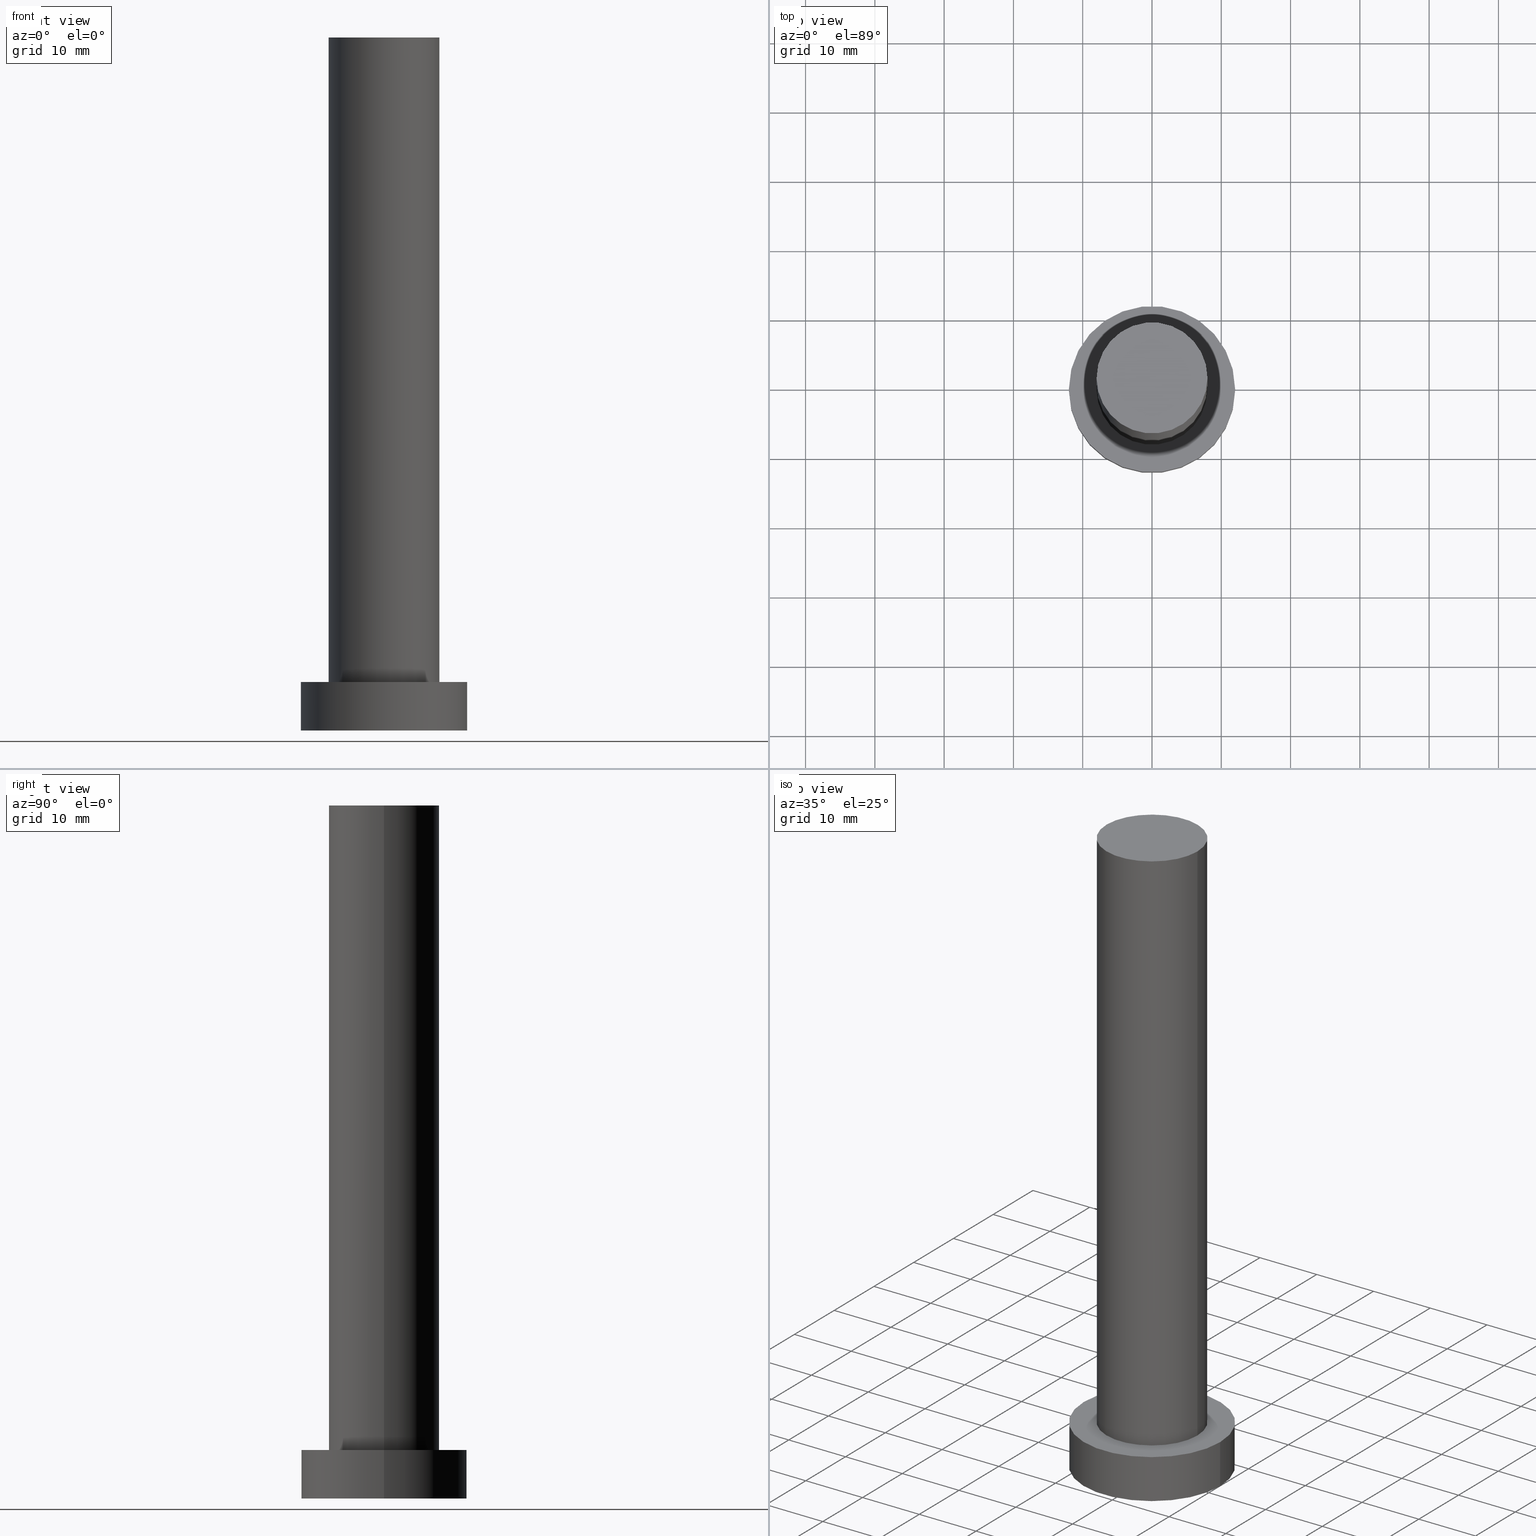
[diagram: canonical four-view strip — front | top / right | iso, engineering-drawing reading convention]
A machine part, canonical four-view strip (front | top / right | iso — engineering-drawing reading convention). The complete STEP part file that produces these views, byte-faithful:
ISO-10303-21;
HEADER;
FILE_DESCRIPTION (( 'STEP AP203' ),
    '1' );
FILE_NAME ('c171.STEP',
    '2023-02-13T09:44:55',
    ( '' ),
    ( '' ),
    'SwSTEP 2.0',
    'SolidWorks 2019',
    '' );
FILE_SCHEMA (( 'CONFIG_CONTROL_DESIGN' ));
ENDSEC;

DATA;
#1 = PERSON_AND_ORGANIZATION ( #241, #145 ) ;
#2 = CARTESIAN_POINT ( 'NONE',  ( 12.00000000000000178, 1.469576158976824144E-15, 7.000000000000000000 ) ) ;
#3 = AXIS2_PLACEMENT_3D ( 'NONE', #124, #224, #221 ) ;
#4 = APPROVAL_PERSON_ORGANIZATION ( #1, #196, #177 ) ;
#5 = CARTESIAN_POINT ( 'NONE',  ( 0.000000000000000000, 0.000000000000000000, 7.000000000000000000 ) ) ;
#6 = AXIS2_PLACEMENT_3D ( 'NONE', #97, #24, #198 ) ;
#7 = ORIENTED_EDGE ( 'NONE', *, *, #81, .F. ) ;
#8 = CARTESIAN_POINT ( 'NONE',  ( 0.000000000000000000, 0.000000000000000000, 0.000000000000000000 ) ) ;
#9 = LINE ( 'NONE', #162, #233 ) ;
#10 = ORIENTED_EDGE ( 'NONE', *, *, #245, .T. ) ;
#11 = APPLICATION_CONTEXT ( 'configuration controlled 3d designs of mechanical parts and assemblies' ) ;
#12 = DIRECTION ( 'NONE',  ( -0.000000000000000000, -0.000000000000000000, -1.000000000000000000 ) ) ;
#13 = DIRECTION ( 'NONE',  ( 1.000000000000000000, 0.000000000000000000, 0.000000000000000000 ) ) ;
#14 = ADVANCED_FACE ( 'NONE', ( #197 ), #39, .T. ) ;
#15 = CARTESIAN_POINT ( 'NONE',  ( 0.000000000000000000, 0.000000000000000000, 7.000000000000000000 ) ) ;
#16 = DATE_AND_TIME ( #94, #165 ) ;
#17 = DATE_AND_TIME ( #193, #133 ) ;
#18 = PERSON_AND_ORGANIZATION ( #241, #145 ) ;
#19 = AXIS2_PLACEMENT_3D ( 'NONE', #122, #160, #139 ) ;
#20 = DIRECTION ( 'NONE',  ( 1.000000000000000000, 0.000000000000000000, 0.000000000000000000 ) ) ;
#21 = CLOSED_SHELL ( 'NONE', ( #250, #75, #14, #42, #227, #113, #182 ) ) ;
#22 = CC_DESIGN_SECURITY_CLASSIFICATION ( #141, ( #79 ) ) ;
#23 = EDGE_CURVE ( 'NONE', #152, #207, #199, .T. ) ;
#24 = DIRECTION ( 'NONE',  ( -0.000000000000000000, -0.000000000000000000, -1.000000000000000000 ) ) ;
#25 = DIRECTION ( 'NONE',  ( -0.000000000000000000, -0.000000000000000000, -1.000000000000000000 ) ) ;
#26 = ORIENTED_EDGE ( 'NONE', *, *, #194, .F. ) ;
#27 = ORIENTED_EDGE ( 'NONE', *, *, #59, .F. ) ;
#28 = PERSON_AND_ORGANIZATION_ROLE ( 'creator' ) ;
#29 = EDGE_LOOP ( 'NONE', ( #230, #27, #189, #206 ) ) ;
#30 = ORIENTED_EDGE ( 'NONE', *, *, #116, .F. ) ;
#31 = EDGE_CURVE ( 'NONE', #152, #155, #96, .T. ) ;
#32 = DIRECTION ( 'NONE',  ( 0.000000000000000000, 0.000000000000000000, 1.000000000000000000 ) ) ;
#33 =( LENGTH_UNIT ( ) NAMED_UNIT ( * ) SI_UNIT ( .MILLI., .METRE. ) );
#34 = CYLINDRICAL_SURFACE ( 'NONE', #215, 12.00000000000000178 ) ;
#35 = MANIFOLD_SOLID_BREP ( 'P�idat vysunut�m3', #21 ) ;
#36 = APPROVAL_STATUS ( 'not_yet_approved' ) ;
#37 = LOCAL_TIME ( 10, 44, 55.00000000000000000, #130 ) ;
#38 = PRODUCT_DEFINITION ( 'NEZN�M�', '', #79, #105 ) ;
#39 = CYLINDRICAL_SURFACE ( 'NONE', #115, 12.00000000000000178 ) ;
#40 = LOCAL_TIME ( 10, 44, 55.00000000000000000, #112 ) ;
#41 = DIRECTION ( 'NONE',  ( 1.000000000000000000, 0.000000000000000000, 0.000000000000000000 ) ) ;
#42 = ADVANCED_FACE ( 'NONE', ( #176, #169 ), #192, .T. ) ;
#43 = DIRECTION ( 'NONE',  ( 1.000000000000000000, 0.000000000000000000, -0.000000000000000000 ) ) ;
#44 = FACE_OUTER_BOUND ( 'NONE', #88, .T. ) ;
#45 = DIRECTION ( 'NONE',  ( 1.000000000000000000, 0.000000000000000000, 0.000000000000000000 ) ) ;
#46 = ORIENTED_EDGE ( 'NONE', *, *, #148, .T. ) ;
#47 = DIRECTION ( 'NONE',  ( 0.000000000000000000, 0.000000000000000000, 1.000000000000000000 ) ) ;
#48 = VECTOR ( 'NONE', #60, 1000.000000000000000 ) ;
#49 = VERTEX_POINT ( 'NONE', #150 ) ;
#50 = DATE_TIME_ROLE ( 'creation_date' ) ;
#51 = VERTEX_POINT ( 'NONE', #238 ) ;
#52 = PERSON_AND_ORGANIZATION_ROLE ( 'design_owner' ) ;
#53 = EDGE_LOOP ( 'NONE', ( #84, #166 ) ) ;
#54 = PERSON_AND_ORGANIZATION ( #241, #145 ) ;
#55 = ORIENTED_EDGE ( 'NONE', *, *, #99, .F. ) ;
#56 = AXIS2_PLACEMENT_3D ( 'NONE', #217, #138, #219 ) ;
#57 = EDGE_LOOP ( 'NONE', ( #101, #118, #46, #161 ) ) ;
#58 = CARTESIAN_POINT ( 'NONE',  ( 0.000000000000000000, 0.000000000000000000, 7.000000000000000000 ) ) ;
#59 = EDGE_CURVE ( 'NONE', #207, #152, #203, .T. ) ;
#60 = DIRECTION ( 'NONE',  ( -0.000000000000000000, -0.000000000000000000, -1.000000000000000000 ) ) ;
#61 = DIRECTION ( 'NONE',  ( 1.000000000000000000, 0.000000000000000000, 0.000000000000000000 ) ) ;
#62 = AXIS2_PLACEMENT_3D ( 'NONE', #58, #235, #13 ) ;
#63 = AXIS2_PLACEMENT_3D ( 'NONE', #212, #70, #106 ) ;
#64 = ORIENTED_EDGE ( 'NONE', *, *, #116, .T. ) ;
#65 = CARTESIAN_POINT ( 'NONE',  ( 12.00000000000000178, 1.469576158976824144E-15, 0.000000000000000000 ) ) ;
#66 = APPLICATION_PROTOCOL_DEFINITION ( 'international standard', 'config_control_design', 1994, #11 ) ;
#67 = ORIENTED_EDGE ( 'NONE', *, *, #180, .T. ) ;
#68 = DIRECTION ( 'NONE',  ( -0.000000000000000000, -0.000000000000000000, -1.000000000000000000 ) ) ;
#69 = APPROVAL_STATUS ( 'not_yet_approved' ) ;
#70 = DIRECTION ( 'NONE',  ( 0.000000000000000000, 0.000000000000000000, 1.000000000000000000 ) ) ;
#71 = APPROVAL ( #69, 'NEUR�EN�' ) ;
#72 = APPROVAL_DATE_TIME ( #16, #196 ) ;
#73 = DIRECTION ( 'NONE',  ( -1.000000000000000000, 0.000000000000000000, 0.000000000000000000 ) ) ;
#74 = SHAPE_DEFINITION_REPRESENTATION ( #210, #120 ) ;
#75 = ADVANCED_FACE ( 'NONE', ( #175 ), #34, .T. ) ;
#76 = PERSON_AND_ORGANIZATION_ROLE ( 'creator' ) ;
#77 = CC_DESIGN_PERSON_AND_ORGANIZATION_ASSIGNMENT ( #134, #254, ( #141 ) ) ;
#78 = CARTESIAN_POINT ( 'NONE',  ( 0.000000000000000000, 0.000000000000000000, 0.000000000000000000 ) ) ;
#79 = PRODUCT_DEFINITION_FORMATION_WITH_SPECIFIED_SOURCE ( 'LIBOVOLN�', '', #229, .NOT_KNOWN. ) ;
#80 = CARTESIAN_POINT ( 'NONE',  ( -12.00000000000000178, 0.000000000000000000, 7.000000000000000000 ) ) ;
#81 = EDGE_CURVE ( 'NONE', #51, #244, #153, .T. ) ;
#82 = PLANE ( 'NONE',  #159 ) ;
#83 = CARTESIAN_POINT ( 'NONE',  ( -8.000000000000000000, 0.000000000000000000, 7.000000000000000000 ) ) ;
#84 = ORIENTED_EDGE ( 'NONE', *, *, #59, .T. ) ;
#85 = EDGE_CURVE ( 'NONE', #244, #51, #208, .T. ) ;
#86 = CARTESIAN_POINT ( 'NONE',  ( 0.000000000000000000, 0.000000000000000000, 100.0000000000000000 ) ) ;
#87 = AXIS2_PLACEMENT_3D ( 'NONE', #239, #102, #41 ) ;
#88 = EDGE_LOOP ( 'NONE', ( #67, #146 ) ) ;
#89 = CC_DESIGN_APPROVAL ( #196, ( #141 ) ) ;
#90 = PRODUCT_RELATED_PRODUCT_CATEGORY ( 'detail', '', ( #229 ) ) ;
#91 = CYLINDRICAL_SURFACE ( 'NONE', #172, 8.000000000000000000 ) ;
#92 = APPROVAL_STATUS ( 'not_yet_approved' ) ;
#93 = VECTOR ( 'NONE', #25, 1000.000000000000000 ) ;
#94 = CALENDAR_DATE ( 2023, 13, 2 ) ;
#95 = AXIS2_PLACEMENT_3D ( 'NONE', #5, #47, #45 ) ;
#96 = LINE ( 'NONE', #179, #110 ) ;
#97 = CARTESIAN_POINT ( 'NONE',  ( 0.000000000000000000, 0.000000000000000000, 100.0000000000000000 ) ) ;
#98 = AXIS2_PLACEMENT_3D ( 'NONE', #119, #156, #61 ) ;
#99 = EDGE_CURVE ( 'NONE', #207, #144, #243, .T. ) ;
#100 = FACE_OUTER_BOUND ( 'NONE', #57, .T. ) ;
#101 = ORIENTED_EDGE ( 'NONE', *, *, #245, .F. ) ;
#102 = DIRECTION ( 'NONE',  ( 0.000000000000000000, 0.000000000000000000, 1.000000000000000000 ) ) ;
#103 = ORIENTED_EDGE ( 'NONE', *, *, #81, .T. ) ;
#104 = PERSON_AND_ORGANIZATION ( #241, #145 ) ;
#105 = DESIGN_CONTEXT ( 'detailed design', #11, 'design' ) ;
#106 = DIRECTION ( 'NONE',  ( 1.000000000000000000, 0.000000000000000000, 0.000000000000000000 ) ) ;
#107 = DIRECTION ( 'NONE',  ( -1.000000000000000000, 0.000000000000000000, 0.000000000000000000 ) ) ;
#108 = APPLICATION_PROTOCOL_DEFINITION ( 'international standard', 'config_control_design', 1994, #171 ) ;
#109 = SECURITY_CLASSIFICATION_LEVEL ( 'unclassified' ) ;
#110 = VECTOR ( 'NONE', #12, 1000.000000000000000 ) ;
#111 = APPROVAL_PERSON_ORGANIZATION ( #104, #200, #170 ) ;
#112 = COORDINATED_UNIVERSAL_TIME_OFFSET ( 1, 0, .AHEAD. ) ;
#113 = ADVANCED_FACE ( 'NONE', ( #100 ), #127, .T. ) ;
#114 = CALENDAR_DATE ( 2023, 13, 2 ) ;
#115 = AXIS2_PLACEMENT_3D ( 'NONE', #117, #209, #237 ) ;
#116 = EDGE_CURVE ( 'NONE', #155, #144, #191, .T. ) ;
#117 = CARTESIAN_POINT ( 'NONE',  ( 0.000000000000000000, 0.000000000000000000, 7.000000000000000000 ) ) ;
#118 = ORIENTED_EDGE ( 'NONE', *, *, #180, .F. ) ;
#119 = CARTESIAN_POINT ( 'NONE',  ( 0.000000000000000000, 0.000000000000000000, 7.000000000000000000 ) ) ;
#120 = ADVANCED_BREP_SHAPE_REPRESENTATION ( 'c171', ( #35, #63 ), #137 ) ;
#121 = CIRCLE ( 'NONE', #19, 8.000000000000000000 ) ;
#122 = CARTESIAN_POINT ( 'NONE',  ( 0.000000000000000000, 0.000000000000000000, 100.0000000000000000 ) ) ;
#123 = CARTESIAN_POINT ( 'NONE',  ( 0.000000000000000000, 0.000000000000000000, 100.0000000000000000 ) ) ;
#124 = CARTESIAN_POINT ( 'NONE',  ( 0.000000000000000000, 0.000000000000000000, 0.000000000000000000 ) ) ;
#125 = ORIENTED_EDGE ( 'NONE', *, *, #31, .T. ) ;
#126 = CC_DESIGN_PERSON_AND_ORGANIZATION_ASSIGNMENT ( #147, #52, ( #229 ) ) ;
#127 = CYLINDRICAL_SURFACE ( 'NONE', #6, 8.000000000000000000 ) ;
#128 = APPROVAL_PERSON_ORGANIZATION ( #186, #71, #231 ) ;
#129 = EDGE_LOOP ( 'NONE', ( #248, #125, #64, #55 ) ) ;
#130 = COORDINATED_UNIVERSAL_TIME_OFFSET ( 1, 0, .AHEAD. ) ;
#131 = AXIS2_PLACEMENT_3D ( 'NONE', #123, #143, #43 ) ;
#132 = ORIENTED_EDGE ( 'NONE', *, *, #148, .F. ) ;
#133 = LOCAL_TIME ( 10, 44, 55.00000000000000000, #253 ) ;
#134 = PERSON_AND_ORGANIZATION ( #241, #145 ) ;
#135 = DATE_AND_TIME ( #114, #40 ) ;
#136 = CIRCLE ( 'NONE', #173, 12.00000000000000178 ) ;
#137 =( GEOMETRIC_REPRESENTATION_CONTEXT ( 3 ) GLOBAL_UNCERTAINTY_ASSIGNED_CONTEXT ( ( #246 ) ) GLOBAL_UNIT_ASSIGNED_CONTEXT ( ( #33, #168, #187 ) ) REPRESENTATION_CONTEXT ( 'NONE', 'WORKASPACE' ) );
#138 = DIRECTION ( 'NONE',  ( 0.000000000000000000, 0.000000000000000000, 1.000000000000000000 ) ) ;
#139 = DIRECTION ( 'NONE',  ( 1.000000000000000000, 0.000000000000000000, 0.000000000000000000 ) ) ;
#140 = CARTESIAN_POINT ( 'NONE',  ( -12.00000000000000178, 0.000000000000000000, 0.000000000000000000 ) ) ;
#141 = SECURITY_CLASSIFICATION ( '', '', #109 ) ;
#142 = ORIENTED_EDGE ( 'NONE', *, *, #85, .F. ) ;
#143 = DIRECTION ( 'NONE',  ( 0.000000000000000000, 0.000000000000000000, 1.000000000000000000 ) ) ;
#144 = VERTEX_POINT ( 'NONE', #140 ) ;
#145 = ORGANIZATION ( 'NEUR�EN�', 'NEUR�EN�', '' ) ;
#146 = ORIENTED_EDGE ( 'NONE', *, *, #194, .T. ) ;
#147 = PERSON_AND_ORGANIZATION ( #241, #145 ) ;
#148 = EDGE_CURVE ( 'NONE', #225, #244, #157, .T. ) ;
#149 = DIRECTION ( 'NONE',  ( 0.000000000000000000, 0.000000000000000000, 1.000000000000000000 ) ) ;
#150 = CARTESIAN_POINT ( 'NONE',  ( 8.000000000000000000, 9.797174393178823685E-16, 100.0000000000000000 ) ) ;
#151 = APPROVAL_DATE_TIME ( #251, #200 ) ;
#152 = VERTEX_POINT ( 'NONE', #2 ) ;
#153 = CIRCLE ( 'NONE', #98, 8.000000000000000000 ) ;
#154 = COORDINATED_UNIVERSAL_TIME_OFFSET ( 1, 0, .AHEAD. ) ;
#155 = VERTEX_POINT ( 'NONE', #65 ) ;
#156 = DIRECTION ( 'NONE',  ( 0.000000000000000000, 0.000000000000000000, 1.000000000000000000 ) ) ;
#157 = LINE ( 'NONE', #240, #93 ) ;
#158 = DIRECTION ( 'NONE',  ( 1.000000000000000000, 0.000000000000000000, -0.000000000000000000 ) ) ;
#159 = AXIS2_PLACEMENT_3D ( 'NONE', #78, #181, #158 ) ;
#160 = DIRECTION ( 'NONE',  ( 0.000000000000000000, 0.000000000000000000, 1.000000000000000000 ) ) ;
#161 = ORIENTED_EDGE ( 'NONE', *, *, #85, .T. ) ;
#162 = CARTESIAN_POINT ( 'NONE',  ( 8.000000000000000000, 9.797174393178823685E-16, 100.0000000000000000 ) ) ;
#163 = DIRECTION ( 'NONE',  ( -0.000000000000000000, -0.000000000000000000, -1.000000000000000000 ) ) ;
#164 = CIRCLE ( 'NONE', #87, 8.000000000000000000 ) ;
#165 = LOCAL_TIME ( 10, 44, 55.00000000000000000, #154 ) ;
#166 = ORIENTED_EDGE ( 'NONE', *, *, #23, .T. ) ;
#167 = CALENDAR_DATE ( 2023, 13, 2 ) ;
#168 =( NAMED_UNIT ( * ) PLANE_ANGLE_UNIT ( ) SI_UNIT ( $, .RADIAN. ) );
#169 = FACE_OUTER_BOUND ( 'NONE', #53, .T. ) ;
#170 = APPROVAL_ROLE ( '' ) ;
#171 = APPLICATION_CONTEXT ( 'configuration controlled 3d designs of mechanical parts and assemblies' ) ;
#172 = AXIS2_PLACEMENT_3D ( 'NONE', #86, #163, #107 ) ;
#173 = AXIS2_PLACEMENT_3D ( 'NONE', #8, #149, #234 ) ;
#174 = CC_DESIGN_PERSON_AND_ORGANIZATION_ASSIGNMENT ( #18, #214, ( #79 ) ) ;
#175 = FACE_OUTER_BOUND ( 'NONE', #129, .T. ) ;
#176 = FACE_BOUND ( 'NONE', #190, .T. ) ;
#177 = APPROVAL_ROLE ( '' ) ;
#178 = DATE_TIME_ROLE ( 'classification_date' ) ;
#179 = CARTESIAN_POINT ( 'NONE',  ( 12.00000000000000178, 1.469576158976824144E-15, 7.000000000000000000 ) ) ;
#180 = EDGE_CURVE ( 'NONE', #225, #49, #164, .T. ) ;
#181 = DIRECTION ( 'NONE',  ( 0.000000000000000000, 0.000000000000000000, 1.000000000000000000 ) ) ;
#182 = ADVANCED_FACE ( 'NONE', ( #44 ), #222, .T. ) ;
#183 = FACE_OUTER_BOUND ( 'NONE', #202, .T. ) ;
#184 = CARTESIAN_POINT ( 'NONE',  ( -12.00000000000000178, 0.000000000000000000, 7.000000000000000000 ) ) ;
#185 = ORIENTED_EDGE ( 'NONE', *, *, #255, .F. ) ;
#186 = PERSON_AND_ORGANIZATION ( #241, #145 ) ;
#187 =( NAMED_UNIT ( * ) SI_UNIT ( $, .STERADIAN. ) SOLID_ANGLE_UNIT ( ) );
#188 = CC_DESIGN_APPROVAL ( #200, ( #38 ) ) ;
#189 = ORIENTED_EDGE ( 'NONE', *, *, #99, .T. ) ;
#190 = EDGE_LOOP ( 'NONE', ( #142, #7 ) ) ;
#191 = CIRCLE ( 'NONE', #3, 12.00000000000000178 ) ;
#192 = PLANE ( 'NONE',  #56 ) ;
#193 = CALENDAR_DATE ( 2023, 13, 2 ) ;
#194 = EDGE_CURVE ( 'NONE', #49, #225, #121, .T. ) ;
#195 = PERSON_AND_ORGANIZATION ( #241, #145 ) ;
#196 = APPROVAL ( #36, 'NEUR�EN�' ) ;
#197 = FACE_OUTER_BOUND ( 'NONE', #29, .T. ) ;
#198 = DIRECTION ( 'NONE',  ( -1.000000000000000000, 0.000000000000000000, 0.000000000000000000 ) ) ;
#199 = CIRCLE ( 'NONE', #242, 12.00000000000000178 ) ;
#200 = APPROVAL ( #92, 'NEUR�EN�' ) ;
#201 = CARTESIAN_POINT ( 'NONE',  ( -8.000000000000000000, 0.000000000000000000, 100.0000000000000000 ) ) ;
#202 = EDGE_LOOP ( 'NONE', ( #185, #30 ) ) ;
#203 = CIRCLE ( 'NONE', #62, 12.00000000000000178 ) ;
#204 = EDGE_LOOP ( 'NONE', ( #26, #10, #103, #132 ) ) ;
#205 = FACE_OUTER_BOUND ( 'NONE', #204, .T. ) ;
#206 = ORIENTED_EDGE ( 'NONE', *, *, #255, .T. ) ;
#207 = VERTEX_POINT ( 'NONE', #184 ) ;
#208 = CIRCLE ( 'NONE', #95, 8.000000000000000000 ) ;
#209 = DIRECTION ( 'NONE',  ( -0.000000000000000000, -0.000000000000000000, -1.000000000000000000 ) ) ;
#210 = PRODUCT_DEFINITION_SHAPE ( 'NONE', 'NONE',  #38 ) ;
#211 = CC_DESIGN_DATE_AND_TIME_ASSIGNMENT ( #228, #50, ( #38 ) ) ;
#212 = CARTESIAN_POINT ( 'NONE',  ( 0.000000000000000000, 0.000000000000000000, 0.000000000000000000 ) ) ;
#213 = CARTESIAN_POINT ( 'NONE',  ( 0.000000000000000000, 0.000000000000000000, 7.000000000000000000 ) ) ;
#214 = PERSON_AND_ORGANIZATION_ROLE ( 'design_supplier' ) ;
#215 = AXIS2_PLACEMENT_3D ( 'NONE', #15, #252, #73 ) ;
#216 = APPROVAL_DATE_TIME ( #135, #71 ) ;
#217 = CARTESIAN_POINT ( 'NONE',  ( 0.000000000000000000, 0.000000000000000000, 7.000000000000000000 ) ) ;
#218 = CC_DESIGN_PERSON_AND_ORGANIZATION_ASSIGNMENT ( #195, #76, ( #79 ) ) ;
#219 = DIRECTION ( 'NONE',  ( 1.000000000000000000, 0.000000000000000000, -0.000000000000000000 ) ) ;
#220 = CC_DESIGN_DATE_AND_TIME_ASSIGNMENT ( #17, #178, ( #141 ) ) ;
#221 = DIRECTION ( 'NONE',  ( 1.000000000000000000, 0.000000000000000000, 0.000000000000000000 ) ) ;
#222 = PLANE ( 'NONE',  #131 ) ;
#223 = LOCAL_TIME ( 10, 44, 55.00000000000000000, #236 ) ;
#224 = DIRECTION ( 'NONE',  ( 0.000000000000000000, 0.000000000000000000, 1.000000000000000000 ) ) ;
#225 = VERTEX_POINT ( 'NONE', #201 ) ;
#226 = CC_DESIGN_APPROVAL ( #71, ( #79 ) ) ;
#227 = ADVANCED_FACE ( 'NONE', ( #183 ), #82, .F. ) ;
#228 = DATE_AND_TIME ( #249, #223 ) ;
#229 = PRODUCT ( 'c171', 'c171', '', ( #247 ) ) ;
#230 = ORIENTED_EDGE ( 'NONE', *, *, #31, .F. ) ;
#231 = APPROVAL_ROLE ( '' ) ;
#232 = CC_DESIGN_PERSON_AND_ORGANIZATION_ASSIGNMENT ( #54, #28, ( #38 ) ) ;
#233 = VECTOR ( 'NONE', #68, 1000.000000000000000 ) ;
#234 = DIRECTION ( 'NONE',  ( 1.000000000000000000, 0.000000000000000000, 0.000000000000000000 ) ) ;
#235 = DIRECTION ( 'NONE',  ( 0.000000000000000000, 0.000000000000000000, 1.000000000000000000 ) ) ;
#236 = COORDINATED_UNIVERSAL_TIME_OFFSET ( 1, 0, .AHEAD. ) ;
#237 = DIRECTION ( 'NONE',  ( -1.000000000000000000, 0.000000000000000000, 0.000000000000000000 ) ) ;
#238 = CARTESIAN_POINT ( 'NONE',  ( 8.000000000000000000, 9.797174393178823685E-16, 7.000000000000000000 ) ) ;
#239 = CARTESIAN_POINT ( 'NONE',  ( 0.000000000000000000, 0.000000000000000000, 100.0000000000000000 ) ) ;
#240 = CARTESIAN_POINT ( 'NONE',  ( -8.000000000000000000, 0.000000000000000000, 100.0000000000000000 ) ) ;
#241 = PERSON ( 'NEUR�EN�', 'NEUR�EN�', 'NEUR�EN�', ('NEUR�EN�'), ('NEUR�EN�'), ('NEUR�EN�') ) ;
#242 = AXIS2_PLACEMENT_3D ( 'NONE', #213, #32, #20 ) ;
#243 = LINE ( 'NONE', #80, #48 ) ;
#244 = VERTEX_POINT ( 'NONE', #83 ) ;
#245 = EDGE_CURVE ( 'NONE', #49, #51, #9, .T. ) ;
#246 = UNCERTAINTY_MEASURE_WITH_UNIT (LENGTH_MEASURE( 1.000000000000000082E-05 ), #33, 'distance_accuracy_value', 'NONE');
#247 = MECHANICAL_CONTEXT ( 'NONE', #171, 'mechanical' ) ;
#248 = ORIENTED_EDGE ( 'NONE', *, *, #23, .F. ) ;
#249 = CALENDAR_DATE ( 2023, 13, 2 ) ;
#250 = ADVANCED_FACE ( 'NONE', ( #205 ), #91, .T. ) ;
#251 = DATE_AND_TIME ( #167, #37 ) ;
#252 = DIRECTION ( 'NONE',  ( -0.000000000000000000, -0.000000000000000000, -1.000000000000000000 ) ) ;
#253 = COORDINATED_UNIVERSAL_TIME_OFFSET ( 1, 0, .AHEAD. ) ;
#254 = PERSON_AND_ORGANIZATION_ROLE ( 'classification_officer' ) ;
#255 = EDGE_CURVE ( 'NONE', #144, #155, #136, .T. ) ;
ENDSEC;
END-ISO-10303-21;
